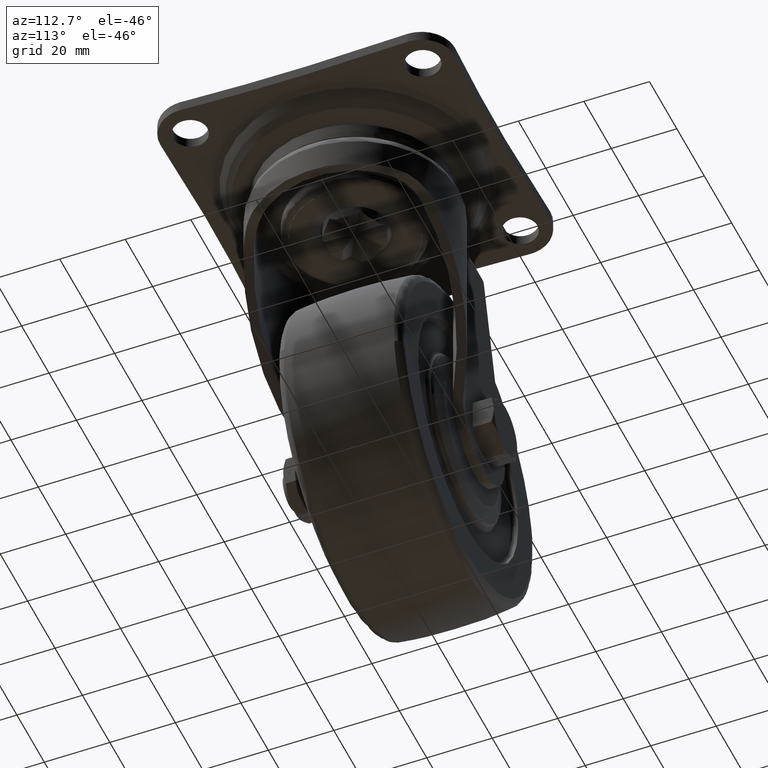
[diagram: clean part render]
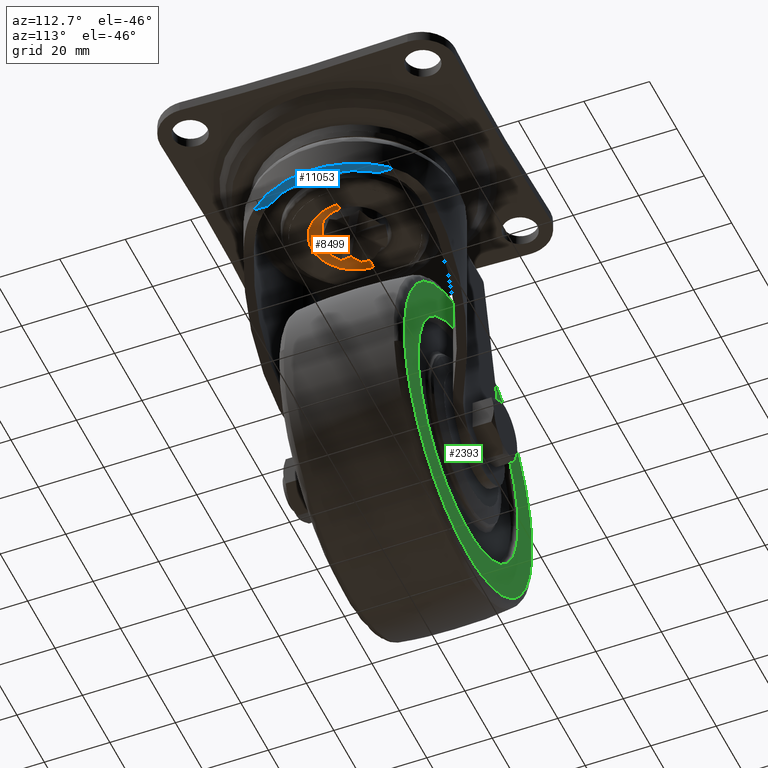
[diagram: same view with three faces highlighted in distinct colors, each labeled with its STEP entity id]
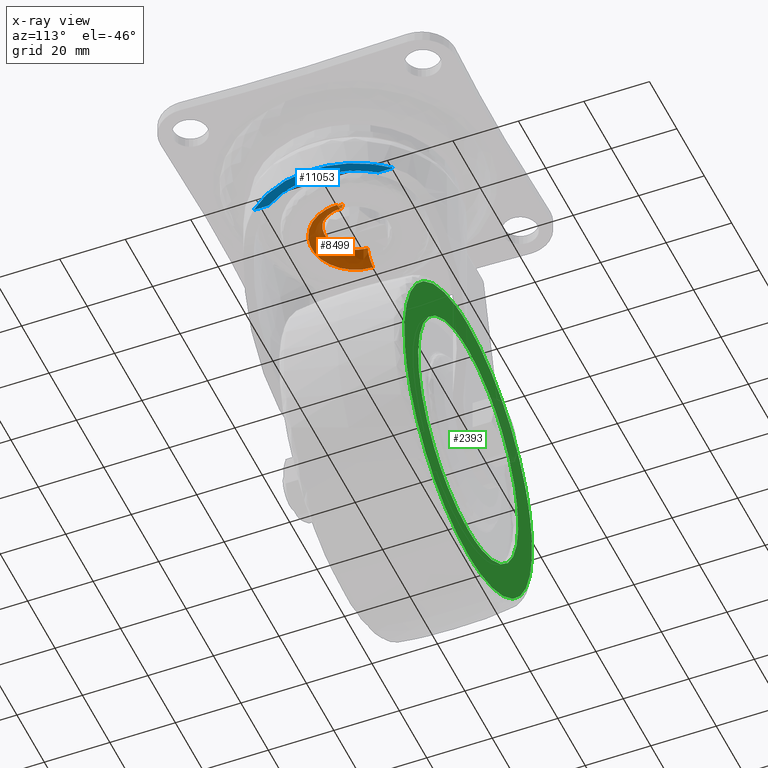
[diagram: x-ray of the same camera — body ghosted, the three highlighted faces saturated]
A machine part, auxiliary view with three faces highlighted in distinct colors.
The next image is the same camera in x-ray (body ghosted, the three faces saturated) — at least one of them is partly hidden behind the body in this view.
Their STEP definitions:

[orange] entity #8499 — the highlighted face is a freeform B-spline surface patch.
#8177=CARTESIAN_POINT('',(-9.249999999999996,-1.509216E-014,-21.099964000150472));
#8178=VERTEX_POINT('',#8177);
#8179=CARTESIAN_POINT('',(9.249999999999996,-1.383335E-014,-21.099964000150472));
#8180=VERTEX_POINT('',#8179);
#8204=CARTESIAN_POINT('',(9.249999999999996,-1.383335E-014,-21.099964000150472));
#8205=CARTESIAN_POINT('',(9.250198146287307,-0.756768265080272,-21.099964000150450));
#8206=CARTESIAN_POINT('',(9.086526952592207,-2.080988481141361,-21.099964000150489));
#8207=CARTESIAN_POINT('',(8.457457695883139,-3.873776308985736,-21.099964000150450));
#8208=CARTESIAN_POINT('',(7.567653115055550,-5.422292854908133,-21.099964000150528));
#8209=CARTESIAN_POINT('',(6.291385201444871,-6.883773406156129,-21.099964000150390));
#8210=CARTESIAN_POINT('',(4.570061615034179,-8.144132680740155,-21.099964000150511));
#8211=CARTESIAN_POINT('',(2.703281919499601,-8.917358001468802,-21.099964000150479));
#8212=CARTESIAN_POINT('',(1.023117664473362,-9.229966467884140,-21.099964000150461));
#8213=CARTESIAN_POINT('',(-0.493100689638920,-9.276511205645948,-21.099964000150660));
#8214=CARTESIAN_POINT('',(-2.188885202674571,-9.056947846377476,-21.099964000150369));
#8215=CARTESIAN_POINT('',(-3.842441410906509,-8.476694345943699,-21.099964000150528));
#8216=CARTESIAN_POINT('',(-5.350324958901354,-7.597778952236721,-21.099964000150461));
#8217=CARTESIAN_POINT('',(-6.490082927869854,-6.650628013685272,-21.099964000150461));
#8218=CARTESIAN_POINT('',(-7.530937419736588,-5.443990000541831,-21.099964000150639));
#8219=CARTESIAN_POINT('',(-8.419106954789296,-3.982789267837820,-21.099964000149608));
#8220=CARTESIAN_POINT('',(-9.085993895123311,-2.118878689552114,-21.099964000152859));
#8221=CARTESIAN_POINT('',(-9.250125535306593,-0.718928741506361,-21.099964000147139));
#8222=CARTESIAN_POINT('',(-9.249999999999996,-1.509216E-014,-21.099964000150472));
#8223=B_SPLINE_CURVE_WITH_KNOTS('',3,(#8204,#8205,#8206,#8207,#8208,#8209,#8210,#8211,#8212,#8213,#8214,#8215,#8216,#8217,#8218,#8219,#8220,#8221,#8222),.UNSPECIFIED.,.F.,.U.,(4,1,1,1,1,1,1,1,1,1,1,1,1,1,1,1,4),(0.000000157693947,2.270258941275895,3.973009938633613,5.675761878067497,7.605533575086390,9.762356630480586,12.032675310141650,13.621891372983940,14.870430543823611,16.573162977922880,18.730022049620541,20.092182216425829,21.794938700226918,23.157127440548930,24.859857676261729,26.903142993234152,29.059914383311519),.UNSPECIFIED.);
#8224=EDGE_CURVE('',#8180,#8178,#8223,.T.);
#8380=CARTESIAN_POINT('',(-13.249999999825540,-1.509245E-014,-25.099964000000050));
#8381=VERTEX_POINT('',#8380);
#8382=CARTESIAN_POINT('',(-13.249999999825544,-1.597405E-014,-25.099964000000046));
#8383=CARTESIAN_POINT('',(-9.250000000150422,-1.592714E-014,-25.099963999825590));
#8384=CARTESIAN_POINT('',(-9.249999999999995,-1.597347E-014,-21.099964000150472));
#8392=(BOUNDED_CURVE()B_SPLINE_CURVE(2,(#8382,#8383,#8384),.UNSPECIFIED.,.F.,.U.)B_SPLINE_CURVE_WITH_KNOTS((3,3),(-1.726807299469043,-0.285995334083232),.UNSPECIFIED.)CURVE()GEOMETRIC_REPRESENTATION_ITEM()RATIONAL_B_SPLINE_CURVE((0.882788776202945,0.622603437754088,0.878205639040909))REPRESENTATION_ITEM(''));
#8393=EDGE_CURVE('',#8381,#8178,#8392,.T.);
#8395=CARTESIAN_POINT('',(13.249999999825540,-1.419562E-014,-25.099964000000050));
#8396=VERTEX_POINT('',#8395);
#8423=CARTESIAN_POINT('',(13.249999999825544,-1.418039E-014,-25.099964000000046));
#8424=CARTESIAN_POINT('',(9.250000000150422,-1.399046E-014,-25.099963999825590));
#8425=CARTESIAN_POINT('',(9.249999999999995,-1.345584E-014,-21.099964000150472));
#8433=(BOUNDED_CURVE()B_SPLINE_CURVE(2,(#8423,#8424,#8425),.UNSPECIFIED.,.F.,.U.)B_SPLINE_CURVE_WITH_KNOTS((3,3),(-1.726807299469043,-0.285995334083232),.UNSPECIFIED.)CURVE()GEOMETRIC_REPRESENTATION_ITEM()RATIONAL_B_SPLINE_CURVE((0.882788776202945,0.622603437754088,0.878205639040909))REPRESENTATION_ITEM(''));
#8434=EDGE_CURVE('',#8396,#8180,#8433,.T.);
#8440=CARTESIAN_POINT('',(13.527402527151578,0.378182044103735,-25.090333386150892));
#8441=CARTESIAN_POINT('',(13.527402527151576,0.190192240823598,-25.090333386150895));
#8442=CARTESIAN_POINT('',(13.527402527151573,-13.527402527151587,-25.090333386150899));
#8443=CARTESIAN_POINT('',(1.656574E-015,-13.527402527151583,-25.090333386150895));
#8444=CARTESIAN_POINT('',(-13.527402527151573,-13.527402527151587,-25.090333386150899));
#8445=CARTESIAN_POINT('',(-13.527402527151574,0.190192240823598,-25.090333386150892));
#8446=CARTESIAN_POINT('',(-13.527402527151574,0.378182044103740,-25.090333386150888));
#8447=CARTESIAN_POINT('',(8.939042841888991,0.249906475946954,-25.409307007136917));
#8448=CARTESIAN_POINT('',(8.939042841888989,0.125680934348224,-25.409307007136917));
#8449=CARTESIAN_POINT('',(8.939042841888988,-8.939042841889004,-25.409307007136903));
#8450=CARTESIAN_POINT('',(1.094681E-015,-8.939042841889005,-25.409307007136917));
#8451=CARTESIAN_POINT('',(-8.939042841888988,-8.939042841889005,-25.409307007136903));
#8452=CARTESIAN_POINT('',(-8.939042841888989,0.125680934348225,-25.409307007136913));
#8453=CARTESIAN_POINT('',(-8.939042841888989,0.249906475946958,-25.409307007136906));
#8454=CARTESIAN_POINT('',(9.259734780902063,0.258871976365836,-20.821067099233240));
#8455=CARTESIAN_POINT('',(9.259734780902063,0.130189790972587,-20.821067099233240));
#8456=CARTESIAN_POINT('',(9.259734780902063,-9.259734780902075,-20.821067099233240));
#8457=CARTESIAN_POINT('',(1.133953E-015,-9.259734780902077,-20.821067099233233));
#8458=CARTESIAN_POINT('',(-9.259734780902061,-9.259734780902077,-20.821067099233240));
#8459=CARTESIAN_POINT('',(-9.259734780902065,0.130189790972587,-20.821067099233236));
#8460=CARTESIAN_POINT('',(-9.259734780902063,0.258871976365840,-20.821067099233236));
#8468=(BOUNDED_SURFACE()B_SPLINE_SURFACE(2,2,((#8440,#8447,#8454),(#8441,#8448,#8455),(#8442,#8449,#8456),(#8443,#8450,#8457),(#8444,#8451,#8458),(#8445,#8452,#8459),(#8446,#8453,#8460)),.UNSPECIFIED.,.F.,.F.,.U.)B_SPLINE_SURFACE_WITH_KNOTS((3,1,2,1,3),(3,3),(0.0,0.448258687234091,22.861193048939139,45.274127410644191,45.722386097878292),(0.0,7.290909035081057),.UNSPECIFIED.)GEOMETRIC_REPRESENTATION_ITEM()RATIONAL_B_SPLINE_SURFACE(((0.920730318469245,0.602530283667150,0.915630244211508),(0.915399262344060,0.599041615275418,0.910328717669053),(0.643515399959645,0.421119527297086,0.639950864003831),(0.910068206218876,0.595552946883686,0.905027191126598),(0.643515399959645,0.421119527297086,0.639950864003831),(0.915399262344060,0.599041615275418,0.910328717669053),(0.920730318469245,0.602530283667150,0.915630244211508)))REPRESENTATION_ITEM('')SURFACE());
#8469=ORIENTED_EDGE('',*,*,#8393,.T.);
#8470=ORIENTED_EDGE('',*,*,#8224,.F.);
#8471=ORIENTED_EDGE('',*,*,#8434,.F.);
#8472=CARTESIAN_POINT('',(-13.249999999825540,-1.509245E-014,-25.099964000000050));
#8473=CARTESIAN_POINT('',(-13.250279086131551,-1.084013886463117,-25.099964000000050));
#8474=CARTESIAN_POINT('',(-13.015844286467120,-2.980883359964610,-25.099964000000021));
#8475=CARTESIAN_POINT('',(-12.042723872049940,-5.754405833043479,-25.099964000000138));
#8476=CARTESIAN_POINT('',(-10.739082929484489,-7.899548611455210,-25.099963999999719));
#8477=CARTESIAN_POINT('',(-9.169464837696040,-9.631009963291328,-25.099964000000579));
#8478=CARTESIAN_POINT('',(-7.489049490341600,-11.010192306960750,-25.099963999999790));
#8479=CARTESIAN_POINT('',(-5.309300815682645,-12.245155773463580,-25.099963999999900));
#8480=CARTESIAN_POINT('',(-2.761984674544347,-13.052110393309469,-25.099964000000082));
#8481=CARTESIAN_POINT('',(-0.271786250042777,-13.312690179162560,-25.099964000000352));
#8482=CARTESIAN_POINT('',(1.681156983543268,-13.180615361593210,-25.099963999999780));
#8483=CARTESIAN_POINT('',(3.437507327132113,-12.831269476174720,-25.099964000000181));
#8484=CARTESIAN_POINT('',(4.882445422374150,-12.353921121004170,-25.099963999999861));
#8485=CARTESIAN_POINT('',(6.648516641465527,-11.518711955198510,-25.099964000000099));
#8486=CARTESIAN_POINT('',(8.278752294303212,-10.429459945876330,-25.099963999999229));
#8487=CARTESIAN_POINT('',(9.774416689259079,-9.005306244614665,-25.099964000000199));
#8488=CARTESIAN_POINT('',(10.928112046663200,-7.563830376248077,-25.099964000000050));
#8489=CARTESIAN_POINT('',(11.822192383942051,-6.072131718754779,-25.099964000000099));
#8490=CARTESIAN_POINT('',(12.613865136315090,-4.225444013909175,-25.099963999999972));
#8491=CARTESIAN_POINT('',(13.128708780317060,-2.222209902735042,-25.099963999999861));
#8492=CARTESIAN_POINT('',(13.250034478369971,-0.704595175491038,-25.099964000000789));
#8493=CARTESIAN_POINT('',(13.249999999825540,-1.419562E-014,-25.099964000000050));
#8494=B_SPLINE_CURVE_WITH_KNOTS('',3,(#8472,#8473,#8474,#8475,#8476,#8477,#8478,#8479,#8480,#8481,#8482,#8483,#8484,#8485,#8486,#8487,#8488,#8489,#8490,#8491,#8492,#8493),.UNSPECIFIED.,.F.,.U.,(4,1,1,1,1,1,1,1,1,1,1,1,1,1,1,1,1,1,1,4),(0.000000208397580,3.251991067138476,5.691062355481549,8.780548300547061,10.731800813123460,12.683060010825461,15.284711678552039,18.211562658578291,20.650611728807970,22.764346101036260,24.065187162302848,26.016422619917609,27.317283429673161,29.918939617445989,31.870193249109828,33.496226223285703,35.447490945768379,37.073491120320021,39.512566889113067,41.626363846071548),.UNSPECIFIED.);
#8495=EDGE_CURVE('',#8381,#8396,#8494,.T.);
#8496=ORIENTED_EDGE('',*,*,#8495,.F.);
#8497=EDGE_LOOP('',(#8469,#8470,#8471,#8496));
#8498=FACE_OUTER_BOUND('',#8497,.T.);
#8499=ADVANCED_FACE('',(#8498),#8468,.T.);

[blue] entity #11053 — the highlighted face is a freeform B-spline surface patch.
#10745=CARTESIAN_POINT('',(23.181614999999798,-21.327511012581500,-28.199999999999999));
#10746=VERTEX_POINT('',#10745);
#10780=CARTESIAN_POINT('',(23.181614999999798,21.327511012581500,-28.199999999999999));
#10781=VERTEX_POINT('',#10780);
#10782=CARTESIAN_POINT('',(23.181614999999780,-21.327511012581500,-28.199999999999999));
#10783=CARTESIAN_POINT('',(42.803316334949450,-6.938894E-015,-28.200000000000006));
#10784=CARTESIAN_POINT('',(23.181614999999791,21.327511012581489,-28.199999999999999));
#10792=(BOUNDED_CURVE()B_SPLINE_CURVE(2,(#10782,#10783,#10784),.UNSPECIFIED.,.F.,.U.)CURVE()GEOMETRIC_REPRESENTATION_ITEM()QUASI_UNIFORM_CURVE()RATIONAL_B_SPLINE_CURVE((1.0,0.735924285714279,1.0))REPRESENTATION_ITEM(''));
#10793=EDGE_CURVE('',#10746,#10781,#10792,.T.);
#10922=CARTESIAN_POINT('',(23.181614999999798,-16.750305250704699,-28.199999999999999));
#10923=VERTEX_POINT('',#10922);
#10957=CARTESIAN_POINT('',(23.181614999999798,-16.750305250704699,-28.199999999999999));
#10958=CARTESIAN_POINT('',(23.181614999999798,-21.327511012581500,-28.199999999999999));
#10959=QUASI_UNIFORM_CURVE('',1,(#10957,#10958),.UNSPECIFIED.,.F.,.U.);
#10960=EDGE_CURVE('',#10923,#10746,#10959,.T.);
#10985=CARTESIAN_POINT('',(23.181614999999798,16.750305250704699,-28.199999999999999));
#10986=VERTEX_POINT('',#10985);
#11022=CARTESIAN_POINT('',(23.181614999999798,21.327511012581500,-28.199999999999999));
#11023=CARTESIAN_POINT('',(23.181614999999798,16.750305250704699,-28.199999999999999));
#11024=QUASI_UNIFORM_CURVE('',1,(#11022,#11023),.UNSPECIFIED.,.F.,.U.);
#11025=EDGE_CURVE('',#10781,#10986,#11024,.T.);
#11030=CARTESIAN_POINT('',(22.766111685372429,-23.458129280064689,-28.199999999999999));
#11031=CARTESIAN_POINT('',(31.915503537743760,-23.458129280064689,-28.199999999999999));
#11032=CARTESIAN_POINT('',(22.766111685372429,23.458130424161538,-28.199999999999999));
#11033=CARTESIAN_POINT('',(31.915503537743760,23.458130424161538,-28.199999999999999));
#11034=B_SPLINE_SURFACE_WITH_KNOTS('',1,1,((#11030,#11032),(#11031,#11033)),.UNSPECIFIED.,.F.,.F.,.U.,(2,2),(2,2),(0.0,9.149391852371327),(0.0,46.916259704226242),.UNSPECIFIED.);
#11035=CARTESIAN_POINT('',(23.181614999999770,-16.750305250704699,-28.199999999999999));
#11036=CARTESIAN_POINT('',(35.284858281013108,-1.040834E-014,-28.200000000000006));
#11037=CARTESIAN_POINT('',(23.181614999999780,16.750305250704692,-28.199999999999999));
#11045=(BOUNDED_CURVE()B_SPLINE_CURVE(2,(#11035,#11036,#11037),.UNSPECIFIED.,.F.,.U.)CURVE()GEOMETRIC_REPRESENTATION_ITEM()QUASI_UNIFORM_CURVE()RATIONAL_B_SPLINE_CURVE((1.0,0.810545979020971,1.0))REPRESENTATION_ITEM(''));
#11046=EDGE_CURVE('',#10923,#10986,#11045,.T.);
#11047=ORIENTED_EDGE('',*,*,#11046,.T.);
#11048=ORIENTED_EDGE('',*,*,#11025,.F.);
#11049=ORIENTED_EDGE('',*,*,#10793,.F.);
#11050=ORIENTED_EDGE('',*,*,#10960,.F.);
#11051=EDGE_LOOP('',(#11047,#11048,#11049,#11050));
#11052=FACE_OUTER_BOUND('',#11051,.T.);
#11053=ADVANCED_FACE('',(#11052),#11034,.F.);

[green] entity #2393 — the highlighted face is a freeform B-spline surface patch.
#2185=CARTESIAN_POINT('',(9.276665821318048,18.999999999999940,-85.256197422079055));
#2186=VERTEX_POINT('',#2185);
#2187=CARTESIAN_POINT('',(-37.0,19.0,-33.425786000000002));
#2188=VERTEX_POINT('',#2187);
#2189=CARTESIAN_POINT('',(9.276665821318048,18.999999999999947,-85.256197422079055));
#2190=CARTESIAN_POINT('',(9.574214012061198,18.999999999999947,-82.636520667629895));
#2191=CARTESIAN_POINT('',(9.574214011710964,18.999999999999950,-80.000000001330164));
#2192=CARTESIAN_POINT('',(9.574214005524013,18.999999999999982,-33.425786000627433));
#2193=CARTESIAN_POINT('',(-37.0,19.0,-33.425786000000002));
#2201=(BOUNDED_CURVE()B_SPLINE_CURVE(2,(#2189,#2190,#2191,#2192,#2193),.UNSPECIFIED.,.F.,.U.)B_SPLINE_CURVE_WITH_KNOTS((3,2,3),(0.230444236555513,0.250000000000000,0.500000000000000),.UNSPECIFIED.)CURVE()GEOMETRIC_REPRESENTATION_ITEM()RATIONAL_B_SPLINE_CURVE((0.957762333071231,0.977088997993559,1.0,0.707106781186548,1.0))REPRESENTATION_ITEM(''));
#2202=EDGE_CURVE('',#2186,#2188,#2201,.T.);
#2204=CARTESIAN_POINT('',(-83.276665821318048,18.999999999999950,-74.743802577920945));
#2205=VERTEX_POINT('',#2204);
#2206=CARTESIAN_POINT('',(-37.0,19.0,-33.425786000000002));
#2207=CARTESIAN_POINT('',(-78.583681816062835,18.999999999999968,-33.425785999297304));
#2208=CARTESIAN_POINT('',(-83.276665821318048,18.999999999999947,-74.743802577920945));
#2216=(BOUNDED_CURVE()B_SPLINE_CURVE(2,(#2206,#2207,#2208),.UNSPECIFIED.,.F.,.U.)B_SPLINE_CURVE_WITH_KNOTS((3,3),(0.500000000000000,0.730444236555513),.UNSPECIFIED.)CURVE()GEOMETRIC_REPRESENTATION_ITEM()RATIONAL_B_SPLINE_CURVE((1.0,0.730017783192989,0.957762333071231))REPRESENTATION_ITEM(''));
#2217=EDGE_CURVE('',#2188,#2205,#2216,.T.);
#2279=CARTESIAN_POINT('',(-37.0,18.999999999999901,-126.574214000000000));
#2280=VERTEX_POINT('',#2279);
#2281=CARTESIAN_POINT('',(-37.0,18.999999999999901,-126.574214000000000));
#2282=CARTESIAN_POINT('',(4.583681816062850,18.999999999999929,-126.574214000702750));
#2283=CARTESIAN_POINT('',(9.276665821318048,18.999999999999947,-85.256197422079055));
#2291=(BOUNDED_CURVE()B_SPLINE_CURVE(2,(#2281,#2282,#2283),.UNSPECIFIED.,.F.,.U.)B_SPLINE_CURVE_WITH_KNOTS((3,3),(0.0,0.230444236555513),.UNSPECIFIED.)CURVE()GEOMETRIC_REPRESENTATION_ITEM()RATIONAL_B_SPLINE_CURVE((1.0,0.730017783192988,0.957762333071231))REPRESENTATION_ITEM(''));
#2292=EDGE_CURVE('',#2280,#2186,#2291,.T.);
#2298=CARTESIAN_POINT('',(-83.276665821318048,18.999999999999947,-74.743802577920945));
#2299=CARTESIAN_POINT('',(-83.574214012061191,18.999999999999950,-77.363479332370133));
#2300=CARTESIAN_POINT('',(-83.574214011710964,18.999999999999940,-79.999999998669892));
#2301=CARTESIAN_POINT('',(-83.574214005524013,18.999999999999922,-126.574213999372590));
#2302=CARTESIAN_POINT('',(-37.0,18.999999999999901,-126.574214000000000));
#2310=(BOUNDED_CURVE()B_SPLINE_CURVE(2,(#2298,#2299,#2300,#2301,#2302),.UNSPECIFIED.,.F.,.U.)B_SPLINE_CURVE_WITH_KNOTS((3,2,3),(0.730444236555513,0.750000000000000,1.0),.UNSPECIFIED.)CURVE()GEOMETRIC_REPRESENTATION_ITEM()RATIONAL_B_SPLINE_CURVE((0.957762333071231,0.977088997993559,1.0,0.707106781186548,1.0))REPRESENTATION_ITEM(''));
#2311=EDGE_CURVE('',#2205,#2280,#2310,.T.);
#2316=CARTESIAN_POINT('',(-88.226960224487939,19.0,-28.773022201939739));
#2317=CARTESIAN_POINT('',(-88.226960224487939,19.0,-131.226980296495810));
#2318=CARTESIAN_POINT('',(14.226962721880140,19.0,-28.773022201939739));
#2319=CARTESIAN_POINT('',(14.226962721880140,19.0,-131.226980296495810));
#2320=B_SPLINE_SURFACE_WITH_KNOTS('',1,1,((#2316,#2318),(#2317,#2319)),.UNSPECIFIED.,.F.,.F.,.U.,(2,2),(2,2),(0.0,102.453958094556100),(0.0,102.453922946368100),.UNSPECIFIED.);
#2321=ORIENTED_EDGE('',*,*,#2311,.F.);
#2322=ORIENTED_EDGE('',*,*,#2217,.F.);
#2323=ORIENTED_EDGE('',*,*,#2202,.F.);
#2324=ORIENTED_EDGE('',*,*,#2292,.F.);
#2325=EDGE_LOOP('',(#2321,#2322,#2323,#2324));
#2326=FACE_OUTER_BOUND('',#2325,.T.);
#2327=CARTESIAN_POINT('',(-37.0,19.0,-43.500000000000007));
#2328=VERTEX_POINT('',#2327);
#2329=CARTESIAN_POINT('',(-61.659042078034219,19.0,-53.089376748322287));
#2330=VERTEX_POINT('',#2329);
#2331=CARTESIAN_POINT('',(-37.0,19.0,-43.500000000000007));
#2332=CARTESIAN_POINT('',(-51.194073322318836,19.0,-43.500000000000014));
#2333=CARTESIAN_POINT('',(-61.659042078034219,19.0,-53.089376748322280));
#2341=(BOUNDED_CURVE()B_SPLINE_CURVE(2,(#2331,#2332,#2333),.UNSPECIFIED.,.F.,.U.)B_SPLINE_CURVE_WITH_KNOTS((3,3),(0.500000000000000,0.618415206279579),.UNSPECIFIED.)CURVE()GEOMETRIC_REPRESENTATION_ITEM()RATIONAL_B_SPLINE_CURVE((1.0,0.861267956305260,0.853959781184122))REPRESENTATION_ITEM(''));
#2342=EDGE_CURVE('',#2328,#2330,#2341,.T.);
#2343=ORIENTED_EDGE('',*,*,#2342,.T.);
#2344=CARTESIAN_POINT('',(-37.0,19.0,-116.500000000000000));
#2345=VERTEX_POINT('',#2344);
#2346=CARTESIAN_POINT('',(-61.659042078034219,19.0,-53.089376748322280));
#2347=CARTESIAN_POINT('',(-73.500000000000000,18.999999999999996,-63.939615217763262));
#2348=CARTESIAN_POINT('',(-73.500000000000000,19.0,-80.0));
#2349=CARTESIAN_POINT('',(-73.500000000000014,18.999999999999996,-116.499999999999990));
#2350=CARTESIAN_POINT('',(-37.0,19.0,-116.500000000000000));
#2358=(BOUNDED_CURVE()B_SPLINE_CURVE(2,(#2346,#2347,#2348,#2349,#2350),.UNSPECIFIED.,.F.,.U.)B_SPLINE_CURVE_WITH_KNOTS((3,2,3),(0.618415206279579,0.750000000000000,1.0),.UNSPECIFIED.)CURVE()GEOMETRIC_REPRESENTATION_ITEM()RATIONAL_B_SPLINE_CURVE((0.853959781184122,0.845838824881287,1.0,0.707106781186547,1.0))REPRESENTATION_ITEM(''));
#2359=EDGE_CURVE('',#2330,#2345,#2358,.T.);
#2360=ORIENTED_EDGE('',*,*,#2359,.T.);
#2361=CARTESIAN_POINT('',(-12.340957921965780,19.0,-106.910623251677710));
#2362=VERTEX_POINT('',#2361);
#2363=CARTESIAN_POINT('',(-37.0,19.0,-116.500000000000000));
#2364=CARTESIAN_POINT('',(-22.805926677681168,19.0,-116.499999999999960));
#2365=CARTESIAN_POINT('',(-12.340957921965783,19.0,-106.910623251677710));
#2373=(BOUNDED_CURVE()B_SPLINE_CURVE(2,(#2363,#2364,#2365),.UNSPECIFIED.,.F.,.U.)B_SPLINE_CURVE_WITH_KNOTS((3,3),(0.0,0.118415206279579),.UNSPECIFIED.)CURVE()GEOMETRIC_REPRESENTATION_ITEM()RATIONAL_B_SPLINE_CURVE((1.0,0.861267956305260,0.853959781184122))REPRESENTATION_ITEM(''));
#2374=EDGE_CURVE('',#2345,#2362,#2373,.T.);
#2375=ORIENTED_EDGE('',*,*,#2374,.T.);
#2376=CARTESIAN_POINT('',(-12.340957921965783,19.0,-106.910623251677710));
#2377=CARTESIAN_POINT('',(-0.500000000000000,18.999999999999996,-96.060384782236724));
#2378=CARTESIAN_POINT('',(-0.500000000000000,19.0,-80.0));
#2379=CARTESIAN_POINT('',(-0.500000000000000,18.999999999999996,-43.500000000000007));
#2380=CARTESIAN_POINT('',(-37.0,19.0,-43.500000000000007));
#2388=(BOUNDED_CURVE()B_SPLINE_CURVE(2,(#2376,#2377,#2378,#2379,#2380),.UNSPECIFIED.,.F.,.U.)B_SPLINE_CURVE_WITH_KNOTS((3,2,3),(0.118415206279579,0.250000000000000,0.500000000000000),.UNSPECIFIED.)CURVE()GEOMETRIC_REPRESENTATION_ITEM()RATIONAL_B_SPLINE_CURVE((0.853959781184122,0.845838824881287,1.0,0.707106781186547,1.0))REPRESENTATION_ITEM(''));
#2389=EDGE_CURVE('',#2362,#2328,#2388,.T.);
#2390=ORIENTED_EDGE('',*,*,#2389,.T.);
#2391=EDGE_LOOP('',(#2343,#2360,#2375,#2390));
#2392=FACE_BOUND('',#2391,.T.);
#2393=ADVANCED_FACE('',(#2326,#2392),#2320,.F.);